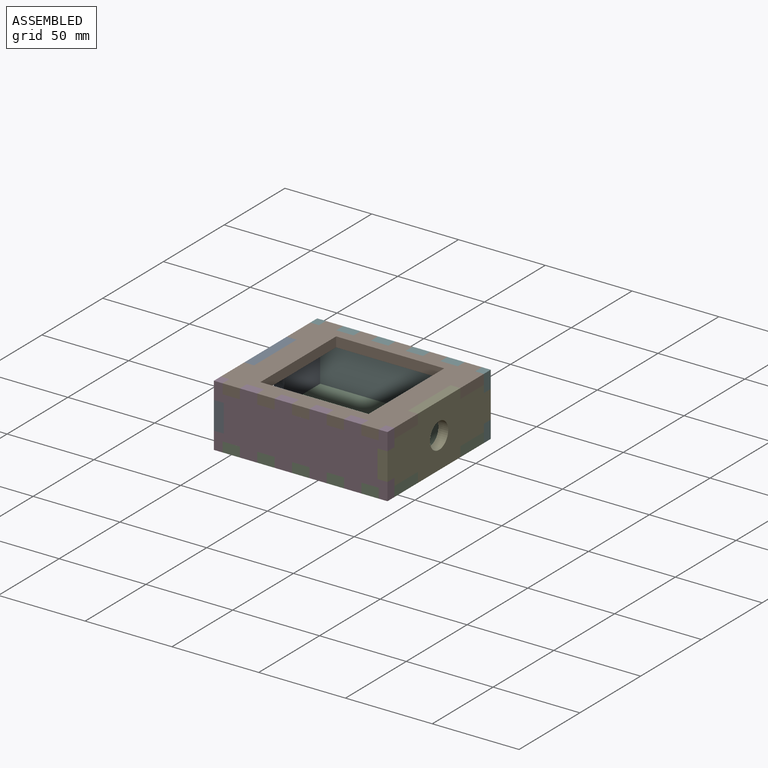
[diagram: assembled view]
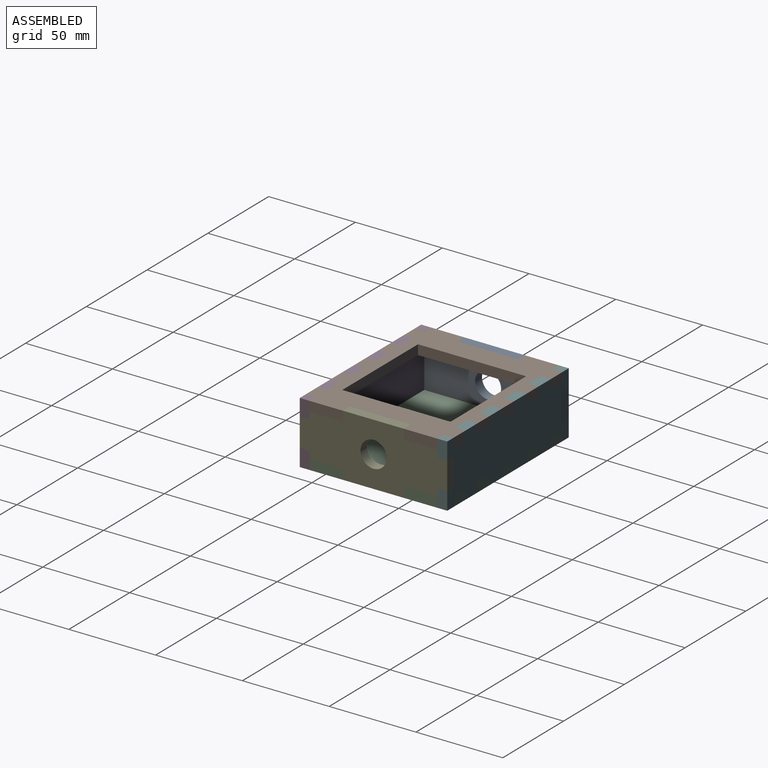
[diagram: assembled view, second angle]
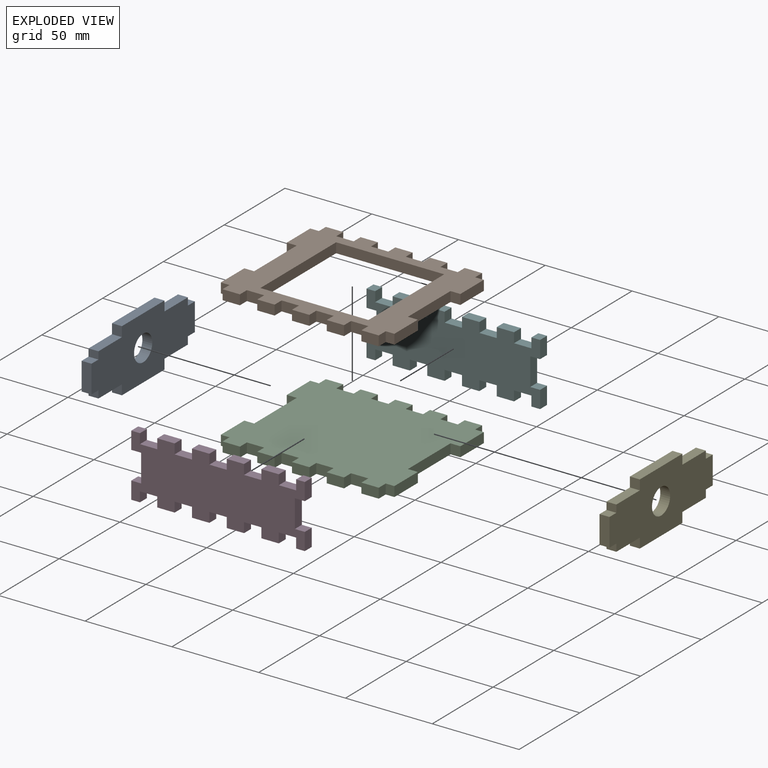
[diagram: exploded view]
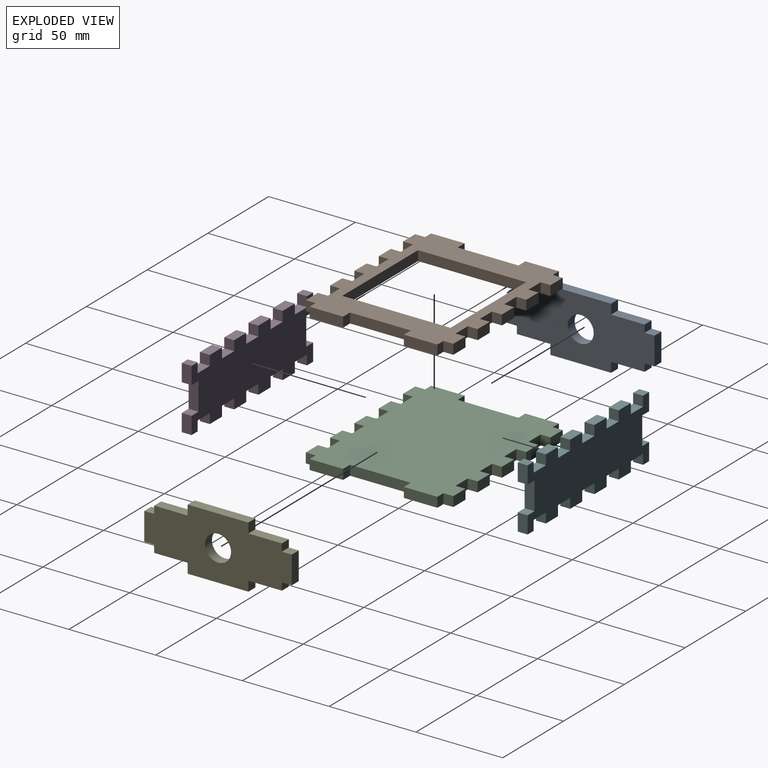
[diagram: exploded view, second angle]
ASSEMBLY  parts=6 mates=5
PART A: 23 faces, bbox 5.7x85x36 mm
  f0: plane 5.7x5.7mm, normal (0,0,1), area 32.5mm2, adj f1,f19,f20,f21
  f1: plane 16x5.7mm, normal (0,-1,0), area 91.2mm2, adj f0,f2,f20,f21
  f2: plane 5.7x5.7mm, normal (0,0,-1), area 32.5mm2, adj f1,f3,f20,f21
  f3: plane 5.7x4.3mm, normal (0,-1,0), area 24.5mm2, adj f2,f4,f20,f21
  f4: plane 19.3x5.7mm, normal (0,0,-1), area 110mm2, adj f3,f5,f20,f21
  f5: plane 5.7x5.7mm, normal (0,-1,0), area 32.5mm2, adj f4,f6,f20,f21
  f6: plane 35x5.7mm, normal (0,0,-1), area 199.5mm2, adj f5,f7,f20,f21
  f7: plane 5.7x5.7mm, normal (0,1,0), area 32.5mm2, adj f6,f8,f20,f21
  f8: plane 19.3x5.7mm, normal (0,0,-1), area 110mm2, adj f7,f9,f20,f21
  f9: plane 5.7x4.3mm, normal (0,1,0), area 24.5mm2, adj f8,f10,f20,f21
  f10: plane 5.7x5.7mm, normal (0,0,-1), area 32.5mm2, adj f9,f11,f20,f21
  f11: plane 16x5.7mm, normal (0,1,0), area 91.2mm2, adj f10,f12,f20,f21
  f12: plane 5.7x5.7mm, normal (0,0,1), area 32.5mm2, adj f11,f13,f20,f21
  f13: plane 5.7x4.3mm, normal (0,1,0), area 24.5mm2, adj f12,f14,f20,f21
  f14: plane 19.3x5.7mm, normal (0,0,1), area 110mm2, adj f13,f15,f20,f21
  f15: plane 5.7x5.7mm, normal (0,1,0), area 32.5mm2, adj f14,f16,f20,f21
  f16: plane 35x5.7mm, normal (0,0,1), area 199.5mm2, adj f15,f17,f20,f21
  f17: plane 5.7x5.7mm, normal (0,-1,0), area 32.5mm2, adj f16,f18,f20,f21
  f18: plane 19.3x5.7mm, normal (0,0,1), area 110mm2, adj f17,f19,f20,f21
  f19: plane 5.7x4.3mm, normal (0,-1,0), area 24.5mm2, adj f0,f18,f20,f21
  f20: plane 85x36mm, normal (1,0,0), area 2215.2mm2, adj f0,f1,f2,f3,f4,f5,f6,f7
  f21: plane 85x36mm, normal (-1,0,0), area 2215.2mm2, adj f0,f1,f2,f3,f4,f5,f6,f7
  f22: cylinder r=7.5mm len=15mm, axis (1,0,0), area 268.6mm2, adj f20,f21
PART B: 58 faces, bbox 100x85x5.7 mm
  f0: plane 100x85mm, normal (0,0,1), area 3649.7mm2, adj f2,f3,f4,f5,f6,f7,f8,f9
  f1: plane 100x85mm, normal (0,0,-1), area 3649.7mm2, adj f2,f3,f4,f5,f6,f7,f8,f9
  f2: plane 5.7x5.7mm, normal (1,0,0), area 32.5mm2, adj f0,f1,f3,f53
  f3: plane 10x5.7mm, normal (0,1,0), area 57mm2, adj f0,f1,f2,f4
  f4: plane 5.7x5.7mm, normal (-1,0,0), area 32.5mm2, adj f0,f1,f3,f5
  f5: plane 5.7x5mm, normal (0,1,0), area 28.5mm2, adj f0,f1,f4,f6
  f6: plane 19.3x5.7mm, normal (-1,0,0), area 110mm2, adj f0,f1,f5,f7
  f7: plane 5.7x5.7mm, normal (0,-1,0), area 32.5mm2, adj f0,f1,f6,f8
  f8: plane 35x5.7mm, normal (-1,0,0), area 199.5mm2, adj f0,f1,f7,f9
  f9: plane 5.7x5.7mm, normal (0,1,0), area 32.5mm2, adj f0,f1,f8,f10
  f10: plane 19.3x5.7mm, normal (-1,0,0), area 110mm2, adj f0,f1,f9,f11
  f11: plane 5.7x5mm, normal (0,-1,0), area 28.5mm2, adj f0,f1,f10,f12
  f12: plane 5.7x5.7mm, normal (-1,0,0), area 32.5mm2, adj f0,f1,f11,f13
  f13: plane 10x5.7mm, normal (0,-1,0), area 57mm2, adj f0,f1,f12,f14
  f14: plane 5.7x5.7mm, normal (1,0,0), area 32.5mm2, adj f0,f1,f13,f15
  f15: plane 10x5.7mm, normal (0,-1,0), area 57mm2, adj f0,f1,f14,f16
  f16: plane 5.7x5.7mm, normal (-1,0,0), area 32.5mm2, adj f0,f1,f15,f17
  f17: plane 10x5.7mm, normal (0,-1,0), area 57mm2, adj f0,f1,f16,f18
  f18: plane 5.7x5.7mm, normal (1,0,0), area 32.5mm2, adj f0,f1,f17,f19
  f19: plane 10x5.7mm, normal (0,-1,0), area 57mm2, adj f0,f1,f18,f20
  f20: plane 5.7x5.7mm, normal (-1,0,0), area 32.5mm2, adj f0,f1,f19,f21
  f21: plane 10x5.7mm, normal (0,-1,0), area 57mm2, adj f0,f1,f20,f22
  f22: plane 5.7x5.7mm, normal (1,0,0), area 32.5mm2, adj f0,f1,f21,f23
  f23: plane 10x5.7mm, normal (0,-1,0), area 57mm2, adj f0,f1,f22,f24
  f24: plane 5.7x5.7mm, normal (-1,0,0), area 32.5mm2, adj f0,f1,f23,f25
  f25: plane 10x5.7mm, normal (0,-1,0), area 57mm2, adj f0,f1,f24,f26
  f26: plane 5.7x5.7mm, normal (1,0,0), area 32.5mm2, adj f0,f1,f25,f27
  f27: plane 10x5.7mm, normal (0,-1,0), area 57mm2, adj f0,f1,f26,f28
  f28: plane 5.7x5.7mm, normal (-1,0,0), area 32.5mm2, adj f0,f1,f27,f29
  f29: plane 10x5.7mm, normal (0,-1,0), area 57mm2, adj f0,f1,f28,f30
  f30: plane 5.7x5.7mm, normal (1,0,0), area 32.5mm2, adj f0,f1,f29,f31
  f31: plane 5.7x5mm, normal (0,-1,0), area 28.5mm2, adj f0,f1,f30,f32
  f32: plane 19.3x5.7mm, normal (1,0,0), area 110mm2, adj f0,f1,f31,f33
  f33: plane 5.7x5.7mm, normal (0,1,0), area 32.5mm2, adj f0,f1,f32,f34
  f34: plane 35x5.7mm, normal (1,0,0), area 199.5mm2, adj f0,f1,f33,f35
  f35: plane 5.7x5.7mm, normal (0,-1,0), area 32.5mm2, adj f0,f1,f34,f36
  f36: plane 19.3x5.7mm, normal (1,0,0), area 110mm2, adj f0,f1,f35,f37
  f37: plane 5.7x5mm, normal (0,1,0), area 28.5mm2, adj f0,f1,f36,f38
  f38: plane 5.7x5.7mm, normal (1,0,0), area 32.5mm2, adj f0,f1,f37,f39
  f39: plane 10x5.7mm, normal (0,1,0), area 57mm2, adj f0,f1,f38,f40
  f40: plane 5.7x5.7mm, normal (-1,0,0), area 32.5mm2, adj f0,f1,f39,f41
  f41: plane 10x5.7mm, normal (0,1,0), area 57mm2, adj f0,f1,f40,f42
  f42: plane 5.7x5.7mm, normal (1,0,0), area 32.5mm2, adj f0,f1,f41,f43
  f43: plane 10x5.7mm, normal (0,1,0), area 57mm2, adj f0,f1,f42,f44
  f44: plane 5.7x5.7mm, normal (-1,0,0), area 32.5mm2, adj f0,f1,f43,f45
  f45: plane 10x5.7mm, normal (0,1,0), area 57mm2, adj f0,f1,f44,f46
  f46: plane 5.7x5.7mm, normal (1,0,0), area 32.5mm2, adj f0,f1,f45,f47
  f47: plane 10x5.7mm, normal (0,1,0), area 57mm2, adj f0,f1,f46,f48
  f48: plane 5.7x5.7mm, normal (-1,0,0), area 32.5mm2, adj f0,f1,f47,f49
  f49: plane 10x5.7mm, normal (0,1,0), area 57mm2, adj f0,f1,f48,f50
  f50: plane 5.7x5.7mm, normal (1,0,0), area 32.5mm2, adj f0,f1,f49,f51
  f51: plane 10x5.7mm, normal (0,1,0), area 57mm2, adj f0,f1,f50,f52
  f52: plane 5.7x5.7mm, normal (-1,0,0), area 32.5mm2, adj f0,f1,f51,f53
  f53: plane 10x5.7mm, normal (0,1,0), area 57mm2, adj f0,f1,f2,f52
  f54: plane 62.3x5.7mm, normal (-1,0,0), area 355.1mm2, adj f0,f1,f55,f57
  f55: plane 62.3x5.7mm, normal (0,-1,0), area 355.1mm2, adj f0,f1,f54,f56
  f56: plane 62.3x5.7mm, normal (1,0,0), area 355.1mm2, adj f0,f1,f55,f57
  f57: plane 62.3x5.7mm, normal (0,1,0), area 355.1mm2, adj f0,f1,f54,f56
PART C: 54 faces, bbox 100x85x5.7 mm
  f0: plane 5.7x5.7mm, normal (1,0,0), area 32.5mm2, adj f1,f51,f52,f53
  f1: plane 10x5.7mm, normal (0,1,0), area 57mm2, adj f0,f2,f52,f53
  f2: plane 5.7x5.7mm, normal (-1,0,0), area 32.5mm2, adj f1,f3,f52,f53
  f3: plane 5.7x5mm, normal (0,1,0), area 28.5mm2, adj f2,f4,f52,f53
  f4: plane 19.3x5.7mm, normal (-1,0,0), area 110mm2, adj f3,f5,f52,f53
  f5: plane 5.7x5.7mm, normal (0,-1,0), area 32.5mm2, adj f4,f6,f52,f53
  f6: plane 35x5.7mm, normal (-1,0,0), area 199.5mm2, adj f5,f7,f52,f53
  f7: plane 5.7x5.7mm, normal (0,1,0), area 32.5mm2, adj f6,f8,f52,f53
  f8: plane 19.3x5.7mm, normal (-1,0,0), area 110mm2, adj f7,f9,f52,f53
  f9: plane 5.7x5mm, normal (0,-1,0), area 28.5mm2, adj f8,f10,f52,f53
  f10: plane 5.7x5.7mm, normal (-1,0,0), area 32.5mm2, adj f9,f11,f52,f53
  f11: plane 10x5.7mm, normal (0,-1,0), area 57mm2, adj f10,f12,f52,f53
  f12: plane 5.7x5.7mm, normal (1,0,0), area 32.5mm2, adj f11,f13,f52,f53
  f13: plane 10x5.7mm, normal (0,-1,0), area 57mm2, adj f12,f14,f52,f53
  f14: plane 5.7x5.7mm, normal (-1,0,0), area 32.5mm2, adj f13,f15,f52,f53
  f15: plane 10x5.7mm, normal (0,-1,0), area 57mm2, adj f14,f16,f52,f53
  f16: plane 5.7x5.7mm, normal (1,0,0), area 32.5mm2, adj f15,f17,f52,f53
  f17: plane 10x5.7mm, normal (0,-1,0), area 57mm2, adj f16,f18,f52,f53
  f18: plane 5.7x5.7mm, normal (-1,0,0), area 32.5mm2, adj f17,f19,f52,f53
  f19: plane 10x5.7mm, normal (0,-1,0), area 57mm2, adj f18,f20,f52,f53
  f20: plane 5.7x5.7mm, normal (1,0,0), area 32.5mm2, adj f19,f21,f52,f53
  f21: plane 10x5.7mm, normal (0,-1,0), area 57mm2, adj f20,f22,f52,f53
  f22: plane 5.7x5.7mm, normal (-1,0,0), area 32.5mm2, adj f21,f23,f52,f53
  f23: plane 10x5.7mm, normal (0,-1,0), area 57mm2, adj f22,f24,f52,f53
  f24: plane 5.7x5.7mm, normal (1,0,0), area 32.5mm2, adj f23,f25,f52,f53
  f25: plane 10x5.7mm, normal (0,-1,0), area 57mm2, adj f24,f26,f52,f53
  f26: plane 5.7x5.7mm, normal (-1,0,0), area 32.5mm2, adj f25,f27,f52,f53
  f27: plane 10x5.7mm, normal (0,-1,0), area 57mm2, adj f26,f28,f52,f53
  f28: plane 5.7x5.7mm, normal (1,0,0), area 32.5mm2, adj f27,f29,f52,f53
  f29: plane 5.7x5mm, normal (0,-1,0), area 28.5mm2, adj f28,f30,f52,f53
  f30: plane 19.3x5.7mm, normal (1,0,0), area 110mm2, adj f29,f31,f52,f53
  f31: plane 5.7x5.7mm, normal (0,1,0), area 32.5mm2, adj f30,f32,f52,f53
  f32: plane 35x5.7mm, normal (1,0,0), area 199.5mm2, adj f31,f33,f52,f53
  f33: plane 5.7x5.7mm, normal (0,-1,0), area 32.5mm2, adj f32,f34,f52,f53
  f34: plane 19.3x5.7mm, normal (1,0,0), area 110mm2, adj f33,f35,f52,f53
  f35: plane 5.7x5mm, normal (0,1,0), area 28.5mm2, adj f34,f36,f52,f53
  f36: plane 5.7x5.7mm, normal (1,0,0), area 32.5mm2, adj f35,f37,f52,f53
  f37: plane 10x5.7mm, normal (0,1,0), area 57mm2, adj f36,f38,f52,f53
  f38: plane 5.7x5.7mm, normal (-1,0,0), area 32.5mm2, adj f37,f39,f52,f53
  f39: plane 10x5.7mm, normal (0,1,0), area 57mm2, adj f38,f40,f52,f53
  f40: plane 5.7x5.7mm, normal (1,0,0), area 32.5mm2, adj f39,f41,f52,f53
  f41: plane 10x5.7mm, normal (0,1,0), area 57mm2, adj f40,f42,f52,f53
  f42: plane 5.7x5.7mm, normal (-1,0,0), area 32.5mm2, adj f41,f43,f52,f53
  f43: plane 10x5.7mm, normal (0,1,0), area 57mm2, adj f42,f44,f52,f53
  f44: plane 5.7x5.7mm, normal (1,0,0), area 32.5mm2, adj f43,f45,f52,f53
  f45: plane 10x5.7mm, normal (0,1,0), area 57mm2, adj f44,f46,f52,f53
  f46: plane 5.7x5.7mm, normal (-1,0,0), area 32.5mm2, adj f45,f47,f52,f53
  f47: plane 10x5.7mm, normal (0,1,0), area 57mm2, adj f46,f48,f52,f53
  f48: plane 5.7x5.7mm, normal (1,0,0), area 32.5mm2, adj f47,f49,f52,f53
  f49: plane 10x5.7mm, normal (0,1,0), area 57mm2, adj f48,f50,f52,f53
  f50: plane 5.7x5.7mm, normal (-1,0,0), area 32.5mm2, adj f49,f51,f52,f53
  f51: plane 10x5.7mm, normal (0,1,0), area 57mm2, adj f0,f50,f52,f53
  f52: plane 100x85mm, normal (0,0,1), area 7531mm2, adj f0,f1,f2,f3,f4,f5,f6,f7
  f53: plane 100x85mm, normal (0,0,-1), area 7531mm2, adj f0,f1,f2,f3,f4,f5,f6,f7
PART D: 54 faces, bbox 100x5.7x36 mm
  f0: plane 10x5.7mm, normal (0,0,-1), area 57mm2, adj f1,f51,f52,f53
  f1: plane 5.7x5.7mm, normal (1,0,0), area 32.5mm2, adj f0,f2,f52,f53
  f2: plane 10x5.7mm, normal (0,0,-1), area 57mm2, adj f1,f3,f52,f53
  f3: plane 5.7x5.7mm, normal (-1,0,0), area 32.5mm2, adj f2,f4,f52,f53
  f4: plane 10x5.7mm, normal (0,0,-1), area 57mm2, adj f3,f5,f52,f53
  f5: plane 5.7x5.7mm, normal (1,0,0), area 32.5mm2, adj f4,f6,f52,f53
  f6: plane 10x5.7mm, normal (0,0,-1), area 57mm2, adj f5,f7,f52,f53
  f7: plane 5.7x5.7mm, normal (-1,0,0), area 32.5mm2, adj f6,f8,f52,f53
  f8: plane 10x5.7mm, normal (0,0,-1), area 57mm2, adj f7,f9,f52,f53
  f9: plane 5.7x5.7mm, normal (1,0,0), area 32.5mm2, adj f8,f10,f52,f53
  f10: plane 10x5.7mm, normal (0,0,-1), area 57mm2, adj f9,f11,f52,f53
  f11: plane 5.7x5.7mm, normal (-1,0,0), area 32.5mm2, adj f10,f12,f52,f53
  f12: plane 10x5.7mm, normal (0,0,-1), area 57mm2, adj f11,f13,f52,f53
  f13: plane 5.7x5.7mm, normal (1,0,0), area 32.5mm2, adj f12,f14,f52,f53
  f14: plane 10x5.7mm, normal (0,0,-1), area 57mm2, adj f13,f15,f52,f53
  f15: plane 5.7x5.7mm, normal (-1,0,0), area 32.5mm2, adj f14,f16,f52,f53
  f16: plane 5.7x5mm, normal (0,0,-1), area 28.5mm2, adj f15,f17,f52,f53
  f17: plane 10x5.7mm, normal (1,0,0), area 57mm2, adj f16,f18,f52,f53
  f18: plane 5.7x5.7mm, normal (0,0,1), area 32.5mm2, adj f17,f19,f52,f53
  f19: plane 16x5.7mm, normal (1,0,0), area 91.2mm2, adj f18,f20,f52,f53
  f20: plane 5.7x5.7mm, normal (0,0,-1), area 32.5mm2, adj f19,f21,f52,f53
  f21: plane 10x5.7mm, normal (1,0,0), area 57mm2, adj f20,f22,f52,f53
  f22: plane 5.7x5mm, normal (0,0,1), area 28.5mm2, adj f21,f23,f52,f53
  f23: plane 5.7x5.7mm, normal (-1,0,0), area 32.5mm2, adj f22,f24,f52,f53
  f24: plane 10x5.7mm, normal (0,0,1), area 57mm2, adj f23,f25,f52,f53
  f25: plane 5.7x5.7mm, normal (1,0,0), area 32.5mm2, adj f24,f26,f52,f53
  f26: plane 10x5.7mm, normal (0,0,1), area 57mm2, adj f25,f27,f52,f53
  f27: plane 5.7x5.7mm, normal (-1,0,0), area 32.5mm2, adj f26,f28,f52,f53
  f28: plane 10x5.7mm, normal (0,0,1), area 57mm2, adj f27,f29,f52,f53
  f29: plane 5.7x5.7mm, normal (1,0,0), area 32.5mm2, adj f28,f30,f52,f53
  f30: plane 10x5.7mm, normal (0,0,1), area 57mm2, adj f29,f31,f52,f53
  f31: plane 5.7x5.7mm, normal (-1,0,0), area 32.5mm2, adj f30,f32,f52,f53
  f32: plane 10x5.7mm, normal (0,0,1), area 57mm2, adj f31,f33,f52,f53
  f33: plane 5.7x5.7mm, normal (1,0,0), area 32.5mm2, adj f32,f34,f52,f53
  f34: plane 10x5.7mm, normal (0,0,1), area 57mm2, adj f33,f35,f52,f53
  f35: plane 5.7x5.7mm, normal (-1,0,0), area 32.5mm2, adj f34,f36,f52,f53
  f36: plane 10x5.7mm, normal (0,0,1), area 57mm2, adj f35,f37,f52,f53
  f37: plane 5.7x5.7mm, normal (1,0,0), area 32.5mm2, adj f36,f38,f52,f53
  f38: plane 10x5.7mm, normal (0,0,1), area 57mm2, adj f37,f39,f52,f53
  f39: plane 5.7x5.7mm, normal (-1,0,0), area 32.5mm2, adj f38,f40,f52,f53
  f40: plane 10x5.7mm, normal (0,0,1), area 57mm2, adj f39,f41,f52,f53
  f41: plane 5.7x5.7mm, normal (1,0,0), area 32.5mm2, adj f40,f42,f52,f53
  f42: plane 5.7x5mm, normal (0,0,1), area 28.5mm2, adj f41,f43,f52,f53
  f43: plane 10x5.7mm, normal (-1,0,0), area 57mm2, adj f42,f44,f52,f53
  f44: plane 5.7x5.7mm, normal (0,0,-1), area 32.5mm2, adj f43,f45,f52,f53
  f45: plane 16x5.7mm, normal (-1,0,0), area 91.2mm2, adj f44,f46,f52,f53
  f46: plane 5.7x5.7mm, normal (0,0,1), area 32.5mm2, adj f45,f47,f52,f53
  f47: plane 10x5.7mm, normal (-1,0,0), area 57mm2, adj f46,f48,f52,f53
  f48: plane 5.7x5mm, normal (0,0,-1), area 28.5mm2, adj f47,f49,f52,f53
  f49: plane 5.7x5.7mm, normal (1,0,0), area 32.5mm2, adj f48,f50,f52,f53
  f50: plane 10x5.7mm, normal (0,0,-1), area 57mm2, adj f49,f51,f52,f53
  f51: plane 5.7x5.7mm, normal (-1,0,0), area 32.5mm2, adj f0,f50,f52,f53
  f52: plane 100x36mm, normal (0,-1,0), area 2847.6mm2, adj f0,f1,f2,f3,f4,f5,f6,f7
  f53: plane 100x36mm, normal (0,1,0), area 2847.6mm2, adj f0,f1,f2,f3,f4,f5,f6,f7
PART E: same geometry as A
PART F: same geometry as D
PLACE A t=(42.65,30.34,-16.72)mm
PLACE B t=(92.65,30.34,-4.42)mm
PLACE C t=(92.65,30.34,-34.72)mm fixed
PLACE D t=(92.65,-6.46,-16.72)mm
PLACE E t=(136.95,30.34,-16.72)mm
PLACE F rot(axis=(0,1,0),180deg) t=(92.65,72.84,-16.72)mm
MATE planar E.f20 <-> C.f34  axis (1,0,0) through (142.65,47.84,-29.02)mm
MATE planar B.f0 <-> E.f16  axis (0,0,1) through (136.95,12.84,1.28)mm
MATE planar D.f52 <-> C.f19  axis (0,-1,0) through (97.65,-12.16,-29.02)mm
MATE planar A.f21 <-> C.f8  axis (-1,0,0) through (42.65,12.84,-29.02)mm
MATE planar F.f53 <-> C.f45  axis (0,1,0) through (87.65,72.84,-29.02)mm
